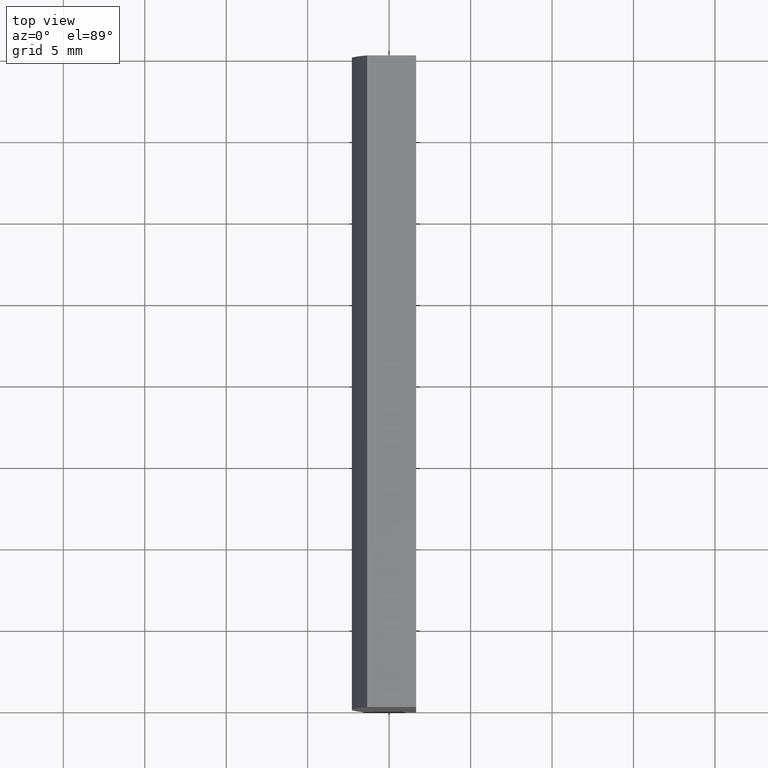
[diagram: clean part render]
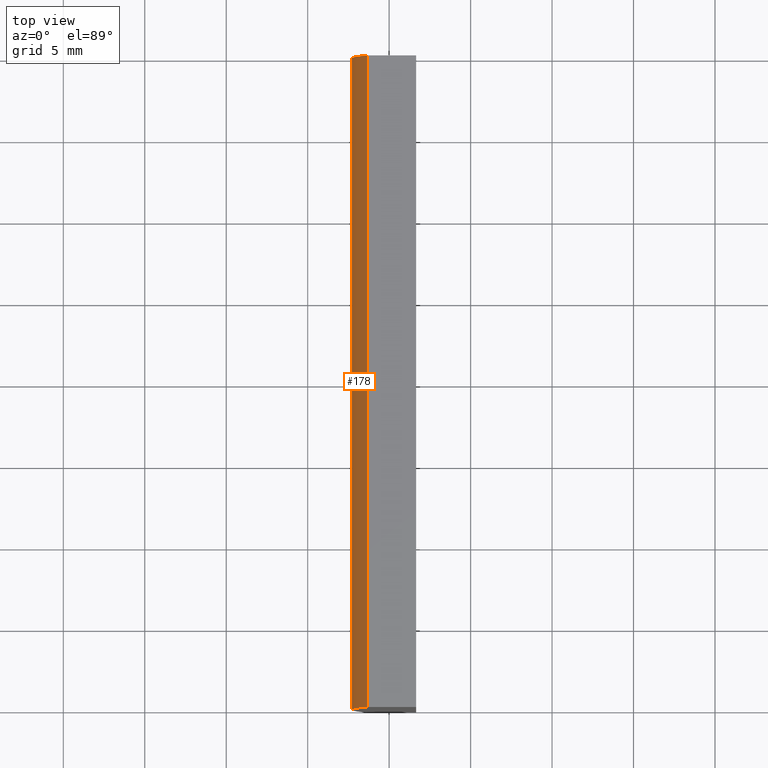
[diagram: same view with one face highlighted and labeled with its STEP entity id]
A machine part, top view. The second image highlights one B-rep face of the part: STEP entity #178.
In plain terms, the highlighted cylindrical surface (partial cylindrical patch) has radius 51.68 mm, axis along (-0, -1, -0).
Its self-contained STEP definition (entity closure, byte-faithful):
#1 = DIRECTION ( 'NONE',  ( 0.0000000000000000000, 1.000000000000000000, 0.0000000000000000000 ) ) ;
#4 = AXIS2_PLACEMENT_3D ( 'NONE', #59, #150, #152 ) ;
#7 = EDGE_CURVE ( 'NONE', #79, #186, #159, .T. ) ;
#11 = CARTESIAN_POINT ( 'NONE',  ( 4.355204334851265500, 0.0000000000000000000, 4.286263797015675000E-017 ) ) ;
#24 = FACE_OUTER_BOUND ( 'NONE', #63, .T. ) ;
#38 = DIRECTION ( 'NONE',  ( -0.0000000000000000000, -1.000000000000000000, -0.0000000000000000000 ) ) ;
#39 = CARTESIAN_POINT ( 'NONE',  ( -46.34807366568831100, 40.00000000000000000, -10.00000000000000000 ) ) ;
#41 = EDGE_CURVE ( 'NONE', #79, #136, #54, .T. ) ;
#47 = CARTESIAN_POINT ( 'NONE',  ( -46.34807366568830400, 0.0000000000000000000, 10.00000000000000000 ) ) ;
#51 = VECTOR ( 'NONE', #38, 1000.000000000000000 ) ;
#54 = CIRCLE ( 'NONE', #67, 51.68000000000000700 ) ;
#55 = EDGE_CURVE ( 'NONE', #136, #171, #108, .T. ) ;
#59 = CARTESIAN_POINT ( 'NONE',  ( 4.355204334851265500, 40.00000000000000000, 4.286263797015675000E-017 ) ) ;
#63 = EDGE_LOOP ( 'NONE', ( #80, #104, #90, #173 ) ) ;
#67 = AXIS2_PLACEMENT_3D ( 'NONE', #194, #196, #201 ) ;
#72 = CARTESIAN_POINT ( 'NONE',  ( -46.34807366568831100, 40.00000000000000000, -10.00000000000000000 ) ) ;
#77 = CARTESIAN_POINT ( 'NONE',  ( -46.34807366568831100, 0.0000000000000000000, -10.00000000000000000 ) ) ;
#79 = VERTEX_POINT ( 'NONE', #72 ) ;
#80 = ORIENTED_EDGE ( 'NONE', *, *, #99, .T. ) ;
#90 = ORIENTED_EDGE ( 'NONE', *, *, #41, .F. ) ;
#99 = EDGE_CURVE ( 'NONE', #186, #171, #168, .T. ) ;
#104 = ORIENTED_EDGE ( 'NONE', *, *, #55, .F. ) ;
#108 = LINE ( 'NONE', #202, #114 ) ;
#114 = VECTOR ( 'NONE', #193, 1000.000000000000000 ) ;
#118 = CARTESIAN_POINT ( 'NONE',  ( -46.34807366568830400, 40.00000000000000000, 10.00000000000000000 ) ) ;
#136 = VERTEX_POINT ( 'NONE', #118 ) ;
#148 = DIRECTION ( 'NONE',  ( 0.0000000000000000000, 0.0000000000000000000, 1.000000000000000000 ) ) ;
#150 = DIRECTION ( 'NONE',  ( -0.0000000000000000000, -1.000000000000000000, -0.0000000000000000000 ) ) ;
#152 = DIRECTION ( 'NONE',  ( 0.0000000000000000000, 0.0000000000000000000, -1.000000000000000000 ) ) ;
#159 = LINE ( 'NONE', #39, #51 ) ;
#160 = CYLINDRICAL_SURFACE ( 'NONE', #4, 51.68000000000000700 ) ;
#168 = CIRCLE ( 'NONE', #187, 51.68000000000000700 ) ;
#171 = VERTEX_POINT ( 'NONE', #47 ) ;
#173 = ORIENTED_EDGE ( 'NONE', *, *, #7, .T. ) ;
#178 = ADVANCED_FACE ( 'NONE', ( #24 ), #160, .T. ) ;
#186 = VERTEX_POINT ( 'NONE', #77 ) ;
#187 = AXIS2_PLACEMENT_3D ( 'NONE', #11, #1, #148 ) ;
#193 = DIRECTION ( 'NONE',  ( -0.0000000000000000000, -1.000000000000000000, -0.0000000000000000000 ) ) ;
#194 = CARTESIAN_POINT ( 'NONE',  ( 4.355204334851265500, 40.00000000000000000, 4.286263797015675000E-017 ) ) ;
#196 = DIRECTION ( 'NONE',  ( 0.0000000000000000000, 1.000000000000000000, 0.0000000000000000000 ) ) ;
#201 = DIRECTION ( 'NONE',  ( 0.0000000000000000000, 0.0000000000000000000, 1.000000000000000000 ) ) ;
#202 = CARTESIAN_POINT ( 'NONE',  ( -46.34807366568830400, 40.00000000000000000, 10.00000000000000000 ) ) ;